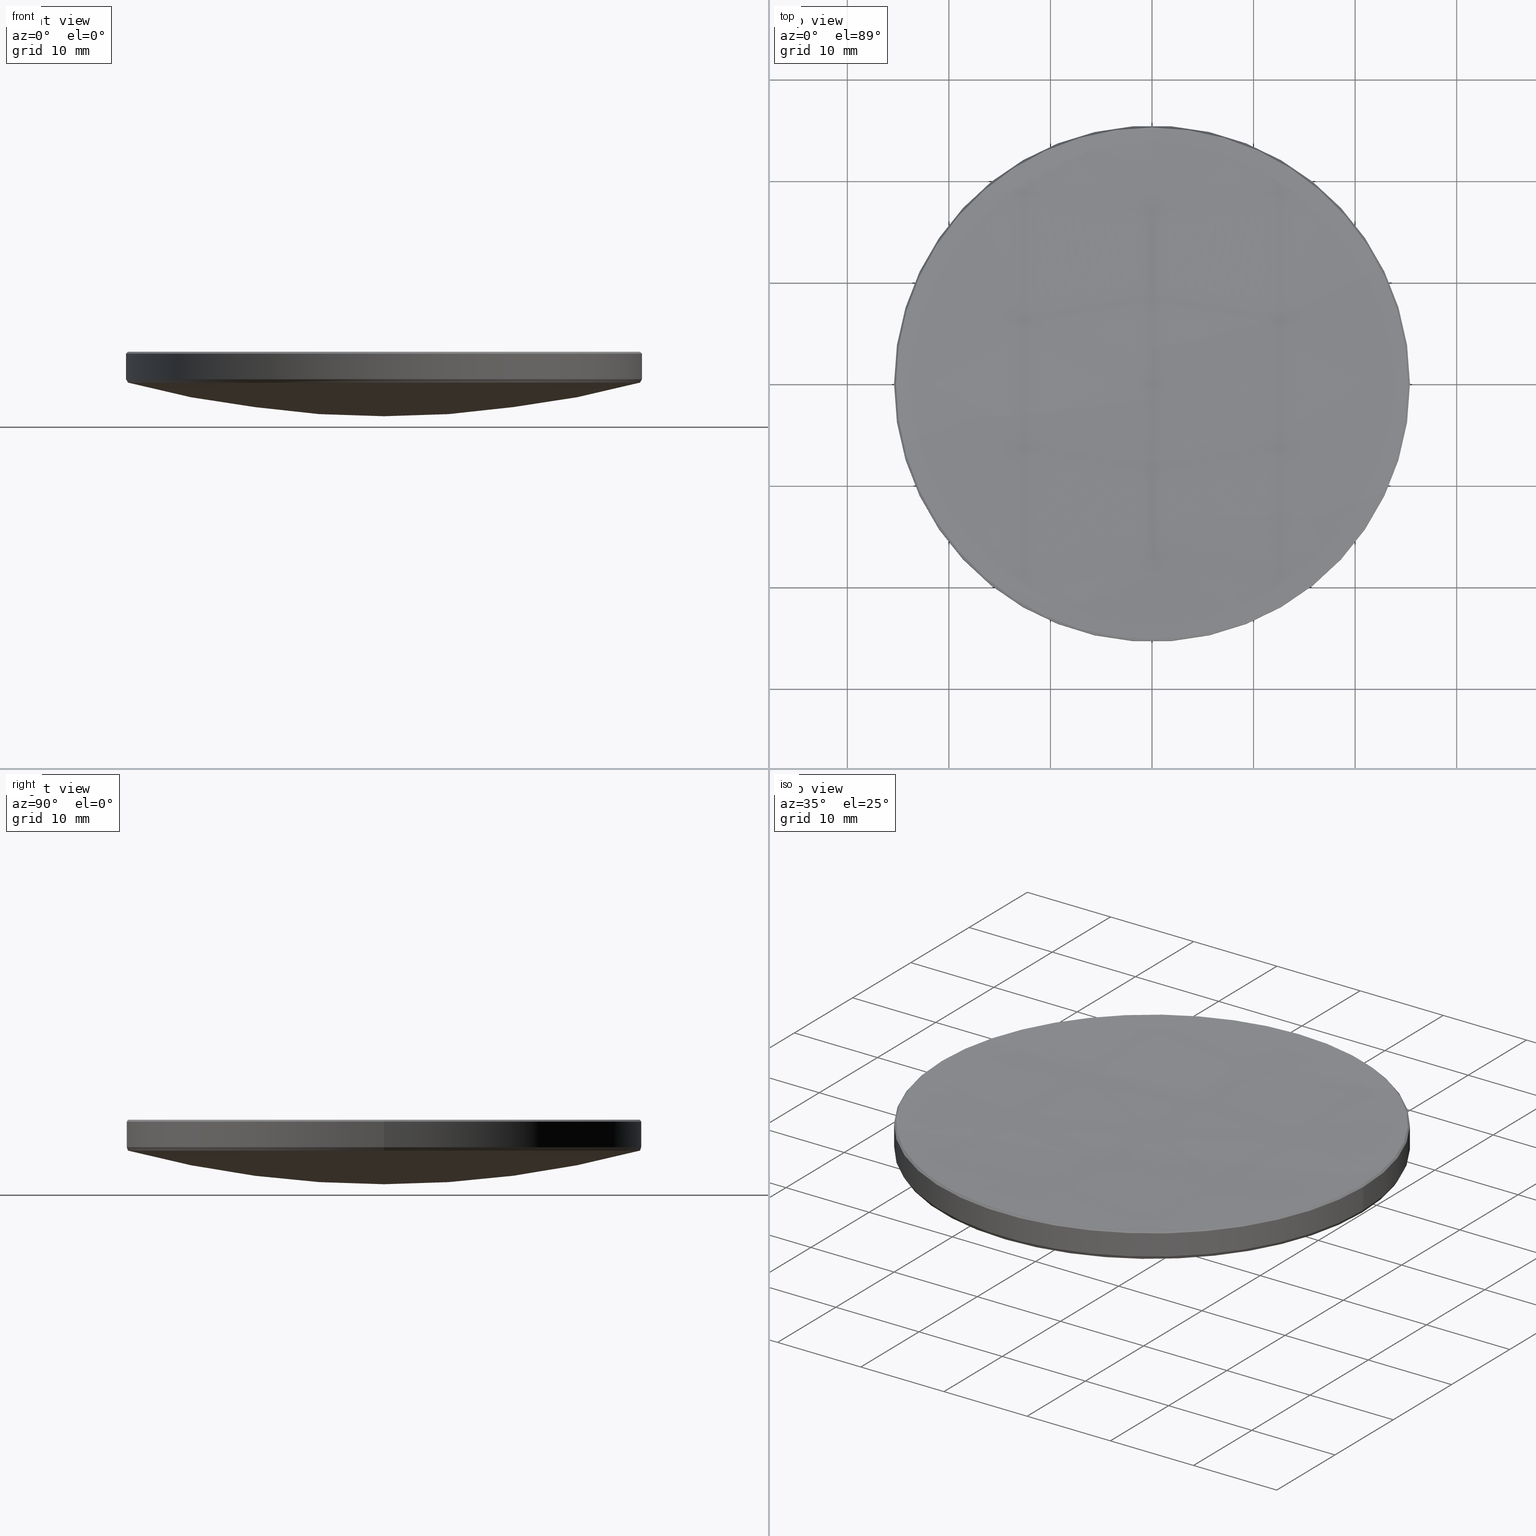
[diagram: canonical four-view strip — front | top / right | iso, engineering-drawing reading convention]
A machine part, canonical four-view strip (front | top / right | iso — engineering-drawing reading convention). The complete STEP part file that produces these views, byte-faithful:
ISO-10303-21;
HEADER;
FILE_DESCRIPTION (( 'STEP AP214' ),
    '1' );
FILE_NAME ('GLM2-050B-300-UV.STEP',
    '2024-08-09T02:56:08',
    ( 'Windows User' ),
    ( 'P R C' ),
    'SwSTEP 2.0',
    'SolidWorks 2022',
    '' );
FILE_SCHEMA (( 'AUTOMOTIVE_DESIGN' ));
ENDSEC;

DATA;
#1 = DIRECTION ( 'NONE',  ( -0.4987438503185733785, 6.107850598870675731E-17, 0.8667494284794218240 ) ) ;
#2 = EDGE_CURVE ( 'NONE', #261, #235, #9, .T. ) ;
#3 = PRESENTATION_LAYER_ASSIGNMENT (  '', '', ( #19 ) ) ;
#4 = DIRECTION ( 'NONE',  ( 1.000000000000000000, 0.000000000000000000, 0.000000000000000000 ) ) ;
#5 = CARTESIAN_POINT ( 'NONE',  ( -25.21438242854474154, 0.000000000000000000, 16.98561757145522577 ) ) ;
#6 = SPHERICAL_SURFACE ( 'NONE', #11, 327.5899999999999750 ) ;
#7 = AXIS2_PLACEMENT_3D ( 'NONE', #317, #25, #292 ) ;
#8 = CARTESIAN_POINT ( 'NONE',  ( 0.000000000000000000, 0.000000000000000000, 14.28355508774084548 ) ) ;
#9 = CIRCLE ( 'NONE', #214, 25.39999999999999858 ) ;
#10 = ORIENTED_EDGE ( 'NONE', *, *, #64, .T. ) ;
#11 = AXIS2_PLACEMENT_3D ( 'NONE', #226, #180, #76 ) ;
#12 = ORIENTED_EDGE ( 'NONE', *, *, #121, .T. ) ;
#13 = ORIENTED_EDGE ( 'NONE', *, *, #111, .T. ) ;
#14 = EDGE_CURVE ( 'NONE', #105, #297, #69, .T. ) ;
#15 = VERTEX_POINT ( 'NONE', #197 ) ;
#16 = AXIS2_PLACEMENT_3D ( 'NONE', #32, #135, #294 ) ;
#17 = ORIENTED_EDGE ( 'NONE', *, *, #47, .F. ) ;
#18 = CARTESIAN_POINT ( 'NONE',  ( 25.39999999999999858, 3.110602869834276865E-15, 14.28355508774084548 ) ) ;
#19 = STYLED_ITEM ( 'NONE', ( #208 ), #285 ) ;
#20 = CARTESIAN_POINT ( 'NONE',  ( 0.000000000000000000, 0.000000000000000000, 108.2472922687967838 ) ) ;
#21 = CARTESIAN_POINT ( 'NONE',  ( 0.000000000000000000, 0.000000000000000000, 16.98561757145522577 ) ) ;
#22 = EDGE_CURVE ( 'NONE', #209, #235, #65, .T. ) ;
#23 = FILL_AREA_STYLE_COLOUR ( '', #169 ) ;
#24 = CARTESIAN_POINT ( 'NONE',  ( 25.39999999999999858, 0.000000000000000000, 14.28355508774084548 ) ) ;
#25 = DIRECTION ( 'NONE',  ( -0.000000000000000000, -0.000000000000000000, -1.000000000000000000 ) ) ;
#26 = CARTESIAN_POINT ( 'NONE',  ( -25.20703431346279899, 3.098787129316124781E-15, 13.94820679539513009 ) ) ;
#27 = FACE_OUTER_BOUND ( 'NONE', #187, .T. ) ;
#28 = DIRECTION ( 'NONE',  ( -0.000000000000000000, -0.000000000000000000, 1.000000000000000000 ) ) ;
#29 = DIRECTION ( 'NONE',  ( 1.000000000000000000, 0.000000000000000000, 0.000000000000000000 ) ) ;
#30 = SURFACE_STYLE_USAGE ( .BOTH. , #150 ) ;
#31 = ORIENTED_EDGE ( 'NONE', *, *, #252, .T. ) ;
#32 = CARTESIAN_POINT ( 'NONE',  ( 0.000000000000000000, 0.000000000000000000, 0.000000000000000000 ) ) ;
#33 = ORIENTED_EDGE ( 'NONE', *, *, #279, .F. ) ;
#34 = CIRCLE ( 'NONE', #212, 25.39999999999999858 ) ;
#35 = ORIENTED_EDGE ( 'NONE', *, *, #148, .T. ) ;
#36 = EDGE_CURVE ( 'NONE', #146, #262, #221, .T. ) ;
#37 = ORIENTED_EDGE ( 'NONE', *, *, #121, .F. ) ;
#38 = DIRECTION ( 'NONE',  ( -1.000000000000000000, 0.000000000000000000, 0.000000000000000000 ) ) ;
#39 = VERTEX_POINT ( 'NONE', #122 ) ;
#40 = DIRECTION ( 'NONE',  ( 0.000000000000000000, 0.000000000000000000, -1.000000000000000000 ) ) ;
#41 = CARTESIAN_POINT ( 'NONE',  ( 0.000000000000000000, 0.000000000000000000, 108.2472922687967838 ) ) ;
#42 = MECHANICAL_DESIGN_GEOMETRIC_PRESENTATION_REPRESENTATION (  '', ( #19 ), #291 ) ;
#43 = FACE_OUTER_BOUND ( 'NONE', #83, .T. ) ;
#44 = LINE ( 'NONE', #245, #123 ) ;
#45 = DIRECTION ( 'NONE',  ( -0.000000000000000000, -0.000000000000000000, 1.000000000000000000 ) ) ;
#46 =( LENGTH_UNIT ( ) NAMED_UNIT ( * ) SI_UNIT ( .MILLI., .METRE. ) );
#47 = EDGE_CURVE ( 'NONE', #39, #140, #114, .T. ) ;
#48 = APPLICATION_PROTOCOL_DEFINITION ( 'draft international standard', 'automotive_design', 1998, #173 ) ;
#49 = AXIS2_PLACEMENT_3D ( 'NONE', #95, #144, #330 ) ;
#50 = AXIS2_PLACEMENT_3D ( 'NONE', #241, #75, #145 ) ;
#51 = EDGE_CURVE ( 'NONE', #140, #235, #253, .T. ) ;
#52 = DIRECTION ( 'NONE',  ( -0.000000000000000000, -0.000000000000000000, 1.000000000000000000 ) ) ;
#53 =( LENGTH_UNIT ( ) NAMED_UNIT ( * ) SI_UNIT ( .MILLI., .METRE. ) );
#54 = CARTESIAN_POINT ( 'NONE',  ( 0.000000000000000000, 0.000000000000000000, 16.98561757145522577 ) ) ;
#55 = ADVANCED_FACE ( 'NONE', ( #198 ), #94, .T. ) ;
#56 = ORIENTED_EDGE ( 'NONE', *, *, #71, .F. ) ;
#57 = ORIENTED_EDGE ( 'NONE', *, *, #22, .F. ) ;
#58 = VECTOR ( 'NONE', #332, 1000.000000000000227 ) ;
#59 = ORIENTED_EDGE ( 'NONE', *, *, #320, .F. ) ;
#60 = EDGE_LOOP ( 'NONE', ( #62, #326, #300, #319 ) ) ;
#61 = MANIFOLD_SOLID_BREP ( '����1', #151 ) ;
#62 = ORIENTED_EDGE ( 'NONE', *, *, #175, .T. ) ;
#63 = CIRCLE ( 'NONE', #90, 25.20703431346279544 ) ;
#64 = EDGE_CURVE ( 'NONE', #105, #230, #251, .T. ) ;
#65 = LINE ( 'NONE', #303, #243 ) ;
#66 = AXIS2_PLACEMENT_3D ( 'NONE', #307, #78, #73 ) ;
#67 = SURFACE_SIDE_STYLE ('',( #72 ) ) ;
#68 = CARTESIAN_POINT ( 'NONE',  ( 0.000000000000000000, 25.21438242854472023, 16.98561757145519735 ) ) ;
#69 = CIRCLE ( 'NONE', #107, 327.5899999999999750 ) ;
#70 =( NAMED_UNIT ( * ) PLANE_ANGLE_UNIT ( ) SI_UNIT ( $, .RADIAN. ) );
#71 = EDGE_CURVE ( 'NONE', #143, #15, #157, .T. ) ;
#72 = SURFACE_STYLE_FILL_AREA ( #170 ) ;
#73 = DIRECTION ( 'NONE',  ( 1.000000000000000000, 0.000000000000000000, 0.000000000000000000 ) ) ;
#74 = CIRCLE ( 'NONE', #282, 25.39999999999999858 ) ;
#75 = DIRECTION ( 'NONE',  ( 1.000000000000000000, 0.000000000000000000, 0.000000000000000000 ) ) ;
#76 = DIRECTION ( 'NONE',  ( 0.000000000000000000, 1.000000000000000000, 0.000000000000000000 ) ) ;
#77 = FACE_OUTER_BOUND ( 'NONE', #296, .T. ) ;
#78 = DIRECTION ( 'NONE',  ( -0.000000000000000000, -0.000000000000000000, 1.000000000000000000 ) ) ;
#79 = DIRECTION ( 'NONE',  ( -1.000000000000000000, 0.000000000000000000, 0.000000000000000000 ) ) ;
#80 = CARTESIAN_POINT ( 'NONE',  ( 0.000000000000000000, 0.000000000000000000, 16.79999999999998295 ) ) ;
#81 = STYLED_ITEM ( 'NONE', ( #284 ), #61 ) ;
#82 = SHAPE_DEFINITION_REPRESENTATION ( #126, #285 ) ;
#83 = EDGE_LOOP ( 'NONE', ( #57, #190, #31, #321 ) ) ;
#84 = VERTEX_POINT ( 'NONE', #219 ) ;
#85 = ORIENTED_EDGE ( 'NONE', *, *, #288, .F. ) ;
#86 = EDGE_LOOP ( 'NONE', ( #162, #96, #233, #35 ) ) ;
#87 = LINE ( 'NONE', #113, #250 ) ;
#88 = EDGE_LOOP ( 'NONE', ( #56, #323, #178, #298 ) ) ;
#89 = ADVANCED_FACE ( 'NONE', ( #329 ), #97, .T. ) ;
#90 = AXIS2_PLACEMENT_3D ( 'NONE', #93, #304, #277 ) ;
#91 = CIRCLE ( 'NONE', #283, 25.21438242854474154 ) ;
#92 = DIRECTION ( 'NONE',  ( -1.000000000000000000, 0.000000000000000000, 0.000000000000000000 ) ) ;
#93 = CARTESIAN_POINT ( 'NONE',  ( 0.000000000000000000, 0.000000000000000000, 13.94820679539513009 ) ) ;
#94 = SPHERICAL_SURFACE ( 'NONE', #110, 97.61000000000001364 ) ;
#95 = CARTESIAN_POINT ( 'NONE',  ( 0.000000000000000000, 0.000000000000000000, 108.2472922687967838 ) ) ;
#96 = ORIENTED_EDGE ( 'NONE', *, *, #14, .T. ) ;
#97 = CONICAL_SURFACE ( 'NONE', #234, 25.39999999999999858, 0.5221489052077682436 ) ;
#98 = ORIENTED_EDGE ( 'NONE', *, *, #175, .F. ) ;
#99 = DIRECTION ( 'NONE',  ( 1.000000000000000000, 0.000000000000000000, 0.000000000000000000 ) ) ;
#100 = DIRECTION ( 'NONE',  ( 0.000000000000000000, 0.000000000000000000, -1.000000000000000000 ) ) ;
#101 = DIRECTION ( 'NONE',  ( 0.000000000000000000, 0.000000000000000000, -1.000000000000000000 ) ) ;
#102 = CARTESIAN_POINT ( 'NONE',  ( 25.20703431346279899, 0.000000000000000000, 13.94820679539513009 ) ) ;
#103 =( NAMED_UNIT ( * ) PLANE_ANGLE_UNIT ( ) SI_UNIT ( $, .RADIAN. ) );
#104 = CIRCLE ( 'NONE', #207, 25.39999999999999858 ) ;
#105 = VERTEX_POINT ( 'NONE', #278 ) ;
#106 = ORIENTED_EDGE ( 'NONE', *, *, #36, .F. ) ;
#107 = AXIS2_PLACEMENT_3D ( 'NONE', #147, #115, #201 ) ;
#108 = ORIENTED_EDGE ( 'NONE', *, *, #127, .F. ) ;
#109 = ORIENTED_EDGE ( 'NONE', *, *, #279, .T. ) ;
#110 = AXIS2_PLACEMENT_3D ( 'NONE', #41, #271, #244 ) ;
#111 = EDGE_CURVE ( 'NONE', #168, #261, #44, .T. ) ;
#112 = ORIENTED_EDGE ( 'NONE', *, *, #236, .F. ) ;
#113 = CARTESIAN_POINT ( 'NONE',  ( -25.39999999999999858, 0.000000000000000000, 20.00000000000000000 ) ) ;
#114 = CIRCLE ( 'NONE', #309, 25.20703431346279544 ) ;
#115 = DIRECTION ( 'NONE',  ( -1.000000000000000000, 1.224646799147353207E-16, 0.000000000000000000 ) ) ;
#116 = AXIS2_PLACEMENT_3D ( 'NONE', #142, #324, #275 ) ;
#117 = DIRECTION ( 'NONE',  ( -1.000000000000000000, 1.224646799147353207E-16, 0.000000000000000000 ) ) ;
#118 = DIRECTION ( 'NONE',  ( 0.000000000000000000, 1.000000000000000000, 0.000000000000000000 ) ) ;
#119 = DIRECTION ( 'NONE',  ( -0.000000000000000000, -0.000000000000000000, 1.000000000000000000 ) ) ;
#120 = DIRECTION ( 'NONE',  ( -0.000000000000000000, -0.000000000000000000, -1.000000000000000000 ) ) ;
#121 = EDGE_CURVE ( 'NONE', #146, #297, #91, .T. ) ;
#122 = CARTESIAN_POINT ( 'NONE',  ( 0.000000000000000000, 25.20703431346280965, 13.94820679539513009 ) ) ;
#123 = VECTOR ( 'NONE', #1, 1000.000000000000227 ) ;
#124 = DIRECTION ( 'NONE',  ( 0.000000000000000000, 0.000000000000000000, -1.000000000000000000 ) ) ;
#125 =( NAMED_UNIT ( * ) SI_UNIT ( $, .STERADIAN. ) SOLID_ANGLE_UNIT ( ) );
#126 = PRODUCT_DEFINITION_SHAPE ( 'NONE', 'NONE',  #308 ) ;
#127 = EDGE_CURVE ( 'NONE', #297, #84, #247, .T. ) ;
#128 = DIRECTION ( 'NONE',  ( -0.000000000000000000, -0.000000000000000000, 1.000000000000000000 ) ) ;
#129 = DIRECTION ( 'NONE',  ( -0.000000000000000000, -0.000000000000000000, 1.000000000000000000 ) ) ;
#130 = DIRECTION ( 'NONE',  ( 1.000000000000000000, 0.000000000000000000, 0.000000000000000000 ) ) ;
#131 = SPHERICAL_SURFACE ( 'NONE', #134, 97.61000000000001364 ) ;
#132 = FACE_OUTER_BOUND ( 'NONE', #60, .T. ) ;
#133 = EDGE_LOOP ( 'NONE', ( #166, #267, #98, #106, #194 ) ) ;
#134 = AXIS2_PLACEMENT_3D ( 'NONE', #289, #79, #184 ) ;
#135 = DIRECTION ( 'NONE',  ( 0.000000000000000000, 0.000000000000000000, 1.000000000000000000 ) ) ;
#136 = CIRCLE ( 'NONE', #328, 25.21438242854474154 ) ;
#137 = ORIENTED_EDGE ( 'NONE', *, *, #14, .F. ) ;
#138 = UNCERTAINTY_MEASURE_WITH_UNIT (LENGTH_MEASURE( 1.000000000000000082E-05 ), #46, 'distance_accuracy_value', 'NONE');
#139 = AXIS2_PLACEMENT_3D ( 'NONE', #54, #286, #158 ) ;
#140 = VERTEX_POINT ( 'NONE', #102 ) ;
#141 = ORIENTED_EDGE ( 'NONE', *, *, #320, .T. ) ;
#142 = CARTESIAN_POINT ( 'NONE',  ( 0.000000000000000000, 0.000000000000000000, 20.00000000000000000 ) ) ;
#143 = VERTEX_POINT ( 'NONE', #155 ) ;
#144 = DIRECTION ( 'NONE',  ( 1.000000000000000000, -0.000000000000000000, 0.000000000000000000 ) ) ;
#145 = DIRECTION ( 'NONE',  ( 0.000000000000000000, 0.000000000000000000, -1.000000000000000000 ) ) ;
#146 = VERTEX_POINT ( 'NONE', #5 ) ;
#147 = CARTESIAN_POINT ( 'NONE',  ( 0.000000000000000000, 0.000000000000000000, 343.6038090714803843 ) ) ;
#148 = EDGE_CURVE ( 'NONE', #84, #230, #202, .T. ) ;
#149 = CARTESIAN_POINT ( 'NONE',  ( 0.000000000000000000, 0.000000000000000000, 16.98561757145522577 ) ) ;
#150 = SURFACE_SIDE_STYLE ('',( #259 ) ) ;
#151 = CLOSED_SHELL ( 'NONE', ( #222, #89, #186, #55, #299, #189, #181, #269, #331, #152 ) ) ;
#152 = ADVANCED_FACE ( 'NONE', ( #77 ), #263, .T. ) ;
#153 =( NAMED_UNIT ( * ) PLANE_ANGLE_UNIT ( ) SI_UNIT ( $, .RADIAN. ) );
#154 = DIRECTION ( 'NONE',  ( 0.000000000000000000, 0.000000000000000000, -1.000000000000000000 ) ) ;
#155 = CARTESIAN_POINT ( 'NONE',  ( 0.000000000000000000, 5.976888703238658404E-15, 10.63729226879676837 ) ) ;
#156 = CARTESIAN_POINT ( 'NONE',  ( 0.000000000000000000, 0.000000000000000000, 13.94820679539513009 ) ) ;
#157 = CIRCLE ( 'NONE', #240, 97.61000000000001364 ) ;
#158 = DIRECTION ( 'NONE',  ( 1.000000000000000000, 0.000000000000000000, 0.000000000000000000 ) ) ;
#159 = FILL_AREA_STYLE_COLOUR ( '', #160 ) ;
#160 = COLOUR_RGB ( '',1.000000000000000000, 1.000000000000000000, 1.000000000000000000 ) ;
#161 = EDGE_CURVE ( 'NONE', #235, #261, #74, .T. ) ;
#162 = ORIENTED_EDGE ( 'NONE', *, *, #64, .F. ) ;
#163 = EDGE_LOOP ( 'NONE', ( #188, #322, #141, #109 ) ) ;
#164 = ORIENTED_EDGE ( 'NONE', *, *, #51, .F. ) ;
#165 = EDGE_CURVE ( 'NONE', #84, #209, #225, .T. ) ;
#166 = ORIENTED_EDGE ( 'NONE', *, *, #148, .F. ) ;
#167 = AXIS2_PLACEMENT_3D ( 'NONE', #21, #40, #220 ) ;
#168 = VERTEX_POINT ( 'NONE', #26 ) ;
#169 = COLOUR_RGB ( '',1.000000000000000000, 1.000000000000000000, 1.000000000000000000 ) ;
#170 = FILL_AREA_STYLE ('',( #23 ) ) ;
#171 = PRODUCT_RELATED_PRODUCT_CATEGORY ( 'part', '', ( #227 ) ) ;
#172 = CARTESIAN_POINT ( 'NONE',  ( 0.000000000000000000, 0.000000000000000000, 14.28355508774084548 ) ) ;
#173 = APPLICATION_CONTEXT ( 'automotive_design' ) ;
#174 = PRODUCT_DEFINITION_CONTEXT ( 'detailed design', #191, 'design' ) ;
#175 = EDGE_CURVE ( 'NONE', #262, #209, #104, .T. ) ;
#176 = CARTESIAN_POINT ( 'NONE',  ( 0.000000000000000000, 0.000000000000000000, 14.28355508774084548 ) ) ;
#177 = AXIS2_PLACEMENT_3D ( 'NONE', #203, #52, #29 ) ;
#178 = ORIENTED_EDGE ( 'NONE', *, *, #47, .T. ) ;
#179 = CARTESIAN_POINT ( 'NONE',  ( 0.000000000000000000, 0.000000000000000000, 16.98561757145522577 ) ) ;
#180 = DIRECTION ( 'NONE',  ( -1.000000000000000000, 0.000000000000000000, 0.000000000000000000 ) ) ;
#181 = ADVANCED_FACE ( 'NONE', ( #258 ), #131, .T. ) ;
#182 = DIRECTION ( 'NONE',  ( 1.000000000000000000, 0.000000000000000000, 0.000000000000000000 ) ) ;
#183 = CARTESIAN_POINT ( 'NONE',  ( -25.39999999999999858, 0.000000000000000000, 14.28355508774084548 ) ) ;
#184 = DIRECTION ( 'NONE',  ( 0.000000000000000000, 1.000000000000000000, 0.000000000000000000 ) ) ;
#185 = CYLINDRICAL_SURFACE ( 'NONE', #7, 25.39999999999999858 ) ;
#186 = ADVANCED_FACE ( 'NONE', ( #316 ), #265, .F. ) ;
#187 = EDGE_LOOP ( 'NONE', ( #137, #10, #215, #12 ) ) ;
#188 = ORIENTED_EDGE ( 'NONE', *, *, #223, .F. ) ;
#189 = ADVANCED_FACE ( 'NONE', ( #43 ), #268, .T. ) ;
#190 = ORIENTED_EDGE ( 'NONE', *, *, #288, .T. ) ;
#191 = APPLICATION_CONTEXT ( 'automotive_design' ) ;
#192 = ORIENTED_EDGE ( 'NONE', *, *, #51, .T. ) ;
#193 = VECTOR ( 'NONE', #327, 1000.000000000000000 ) ;
#194 = ORIENTED_EDGE ( 'NONE', *, *, #281, .F. ) ;
#195 = VECTOR ( 'NONE', #254, 1000.000000000000000 ) ;
#196 = CIRCLE ( 'NONE', #231, 25.20703431346279544 ) ;
#197 = CARTESIAN_POINT ( 'NONE',  ( -3.086971388797973485E-15, -25.20703431346280965, 13.94820679539513009 ) ) ;
#198 = FACE_OUTER_BOUND ( 'NONE', #163, .T. ) ;
#199 = DIRECTION ( 'NONE',  ( 0.000000000000000000, 0.000000000000000000, -1.000000000000000000 ) ) ;
#200 = MECHANICAL_DESIGN_GEOMETRIC_PRESENTATION_REPRESENTATION (  '', ( #81 ), #210 ) ;
#201 = DIRECTION ( 'NONE',  ( -1.224646799147353207E-16, -1.000000000000000000, 0.000000000000000000 ) ) ;
#202 = CIRCLE ( 'NONE', #177, 25.21438242854474154 ) ;
#203 = CARTESIAN_POINT ( 'NONE',  ( 0.000000000000000000, 0.000000000000000000, 16.98561757145522577 ) ) ;
#204 = DIRECTION ( 'NONE',  ( 0.000000000000000000, 0.000000000000000000, -1.000000000000000000 ) ) ;
#205 = DIRECTION ( 'NONE',  ( -1.000000000000000000, 0.000000000000000000, 0.000000000000000000 ) ) ;
#206 = FILL_AREA_STYLE ('',( #159 ) ) ;
#207 = AXIS2_PLACEMENT_3D ( 'NONE', #228, #100, #314 ) ;
#208 = PRESENTATION_STYLE_ASSIGNMENT (( #30 ) ) ;
#209 = VERTEX_POINT ( 'NONE', #242 ) ;
#210 =( GEOMETRIC_REPRESENTATION_CONTEXT ( 3 ) GLOBAL_UNCERTAINTY_ASSIGNED_CONTEXT ( ( #266 ) ) GLOBAL_UNIT_ASSIGNED_CONTEXT ( ( #248, #70, #305 ) ) REPRESENTATION_CONTEXT ( 'NONE', 'WORKASPACE' ) );
#211 = APPLICATION_PROTOCOL_DEFINITION ( 'draft international standard', 'automotive_design', 1998, #191 ) ;
#212 = AXIS2_PLACEMENT_3D ( 'NONE', #80, #204, #99 ) ;
#213 = ORIENTED_EDGE ( 'NONE', *, *, #161, .F. ) ;
#214 = AXIS2_PLACEMENT_3D ( 'NONE', #176, #119, #92 ) ;
#215 = ORIENTED_EDGE ( 'NONE', *, *, #281, .T. ) ;
#216 = EDGE_LOOP ( 'NONE', ( #237, #59, #112, #192, #264 ) ) ;
#217 = ORIENTED_EDGE ( 'NONE', *, *, #36, .T. ) ;
#218 = DIRECTION ( 'NONE',  ( -0.000000000000000000, -0.000000000000000000, -1.000000000000000000 ) ) ;
#219 = CARTESIAN_POINT ( 'NONE',  ( 25.21438242854474154, 3.099237071596867842E-15, 16.98561757145522577 ) ) ;
#220 = DIRECTION ( 'NONE',  ( -1.000000000000000000, 0.000000000000000000, 0.000000000000000000 ) ) ;
#221 = LINE ( 'NONE', #301, #193 ) ;
#222 = ADVANCED_FACE ( 'NONE', ( #246 ), #270, .T. ) ;
#223 = EDGE_CURVE ( 'NONE', #143, #39, #310, .T. ) ;
#224 = DIRECTION ( 'NONE',  ( 1.000000000000000000, 0.000000000000000000, 0.000000000000000000 ) ) ;
#225 = LINE ( 'NONE', #229, #195 ) ;
#226 = CARTESIAN_POINT ( 'NONE',  ( 0.000000000000000000, 0.000000000000000000, 343.6038090714803843 ) ) ;
#227 = PRODUCT ( 'GLM2-050B-300-UV', 'GLM2-050B-300-UV', '', ( #232 ) ) ;
#228 = CARTESIAN_POINT ( 'NONE',  ( 0.000000000000000000, 0.000000000000000000, 16.79999999999998295 ) ) ;
#229 = CARTESIAN_POINT ( 'NONE',  ( 25.21438242854473799, 3.087871273359458030E-15, 16.98561757145522577 ) ) ;
#230 = VERTEX_POINT ( 'NONE', #68 ) ;
#231 = AXIS2_PLACEMENT_3D ( 'NONE', #290, #101, #4 ) ;
#232 = PRODUCT_CONTEXT ( 'NONE', #173, 'mechanical' ) ;
#233 = ORIENTED_EDGE ( 'NONE', *, *, #127, .T. ) ;
#234 = AXIS2_PLACEMENT_3D ( 'NONE', #172, #45, #276 ) ;
#235 = VERTEX_POINT ( 'NONE', #18 ) ;
#236 = EDGE_CURVE ( 'NONE', #140, #15, #63, .T. ) ;
#237 = ORIENTED_EDGE ( 'NONE', *, *, #111, .F. ) ;
#238 = EDGE_LOOP ( 'NONE', ( #33, #13, #213, #164, #17 ) ) ;
#239 = CARTESIAN_POINT ( 'NONE',  ( 0.000000000000000000, 0.000000000000000000, 343.6038090714803843 ) ) ;
#240 = AXIS2_PLACEMENT_3D ( 'NONE', #20, #117, #274 ) ;
#241 = CARTESIAN_POINT ( 'NONE',  ( 0.000000000000000000, 0.000000000000000000, 343.6038090714803843 ) ) ;
#242 = CARTESIAN_POINT ( 'NONE',  ( 25.39999999999999858, 3.110602869834276865E-15, 16.79999999999998295 ) ) ;
#243 = VECTOR ( 'NONE', #218, 1000.000000000000000 ) ;
#244 = DIRECTION ( 'NONE',  ( 0.000000000000000000, 1.000000000000000000, 0.000000000000000000 ) ) ;
#245 = CARTESIAN_POINT ( 'NONE',  ( -25.39999999999999858, 3.110602869834276865E-15, 14.28355508774084548 ) ) ;
#246 = FACE_OUTER_BOUND ( 'NONE', #133, .T. ) ;
#247 = CIRCLE ( 'NONE', #139, 25.21438242854474154 ) ;
#248 =( LENGTH_UNIT ( ) NAMED_UNIT ( * ) SI_UNIT ( .MILLI., .METRE. ) );
#249 = CARTESIAN_POINT ( 'NONE',  ( -25.39999999999999858, 0.000000000000000000, 16.79999999999998295 ) ) ;
#250 = VECTOR ( 'NONE', #120, 1000.000000000000000 ) ;
#251 = CIRCLE ( 'NONE', #50, 327.5899999999999750 ) ;
#252 = EDGE_CURVE ( 'NONE', #262, #261, #87, .T. ) ;
#253 = LINE ( 'NONE', #24, #58 ) ;
#254 = DIRECTION ( 'NONE',  ( 0.7071067811865805464, 8.659560562355338382E-17, -0.7071067811865144881 ) ) ;
#255 = CARTESIAN_POINT ( 'NONE',  ( 0.000000000000000000, 0.000000000000000000, 16.98561757145522577 ) ) ;
#256 = DIRECTION ( 'NONE',  ( -1.000000000000000000, 0.000000000000000000, 0.000000000000000000 ) ) ;
#257 =( NAMED_UNIT ( * ) SI_UNIT ( $, .STERADIAN. ) SOLID_ANGLE_UNIT ( ) );
#258 = FACE_OUTER_BOUND ( 'NONE', #88, .T. ) ;
#259 = SURFACE_STYLE_FILL_AREA ( #206 ) ;
#260 = AXIS2_PLACEMENT_3D ( 'NONE', #239, #38, #118 ) ;
#261 = VERTEX_POINT ( 'NONE', #183 ) ;
#262 = VERTEX_POINT ( 'NONE', #249 ) ;
#263 = CONICAL_SURFACE ( 'NONE', #311, 25.21438242854473799, 0.7853981633974950194 ) ;
#264 = ORIENTED_EDGE ( 'NONE', *, *, #2, .F. ) ;
#265 = SPHERICAL_SURFACE ( 'NONE', #260, 327.5899999999999750 ) ;
#266 = UNCERTAINTY_MEASURE_WITH_UNIT (LENGTH_MEASURE( 1.000000000000000082E-05 ), #248, 'distance_accuracy_value', 'NONE');
#267 = ORIENTED_EDGE ( 'NONE', *, *, #165, .T. ) ;
#268 = CYLINDRICAL_SURFACE ( 'NONE', #116, 25.39999999999999858 ) ;
#269 = ADVANCED_FACE ( 'NONE', ( #27 ), #6, .F. ) ;
#270 = CONICAL_SURFACE ( 'NONE', #167, 25.21438242854473799, 0.7853981633974950194 ) ;
#271 = DIRECTION ( 'NONE',  ( -1.000000000000000000, 0.000000000000000000, 0.000000000000000000 ) ) ;
#272 = PRESENTATION_LAYER_ASSIGNMENT (  '', '', ( #81 ) ) ;
#273 =( GEOMETRIC_REPRESENTATION_CONTEXT ( 3 ) GLOBAL_UNCERTAINTY_ASSIGNED_CONTEXT ( ( #302 ) ) GLOBAL_UNIT_ASSIGNED_CONTEXT ( ( #53, #103, #257 ) ) REPRESENTATION_CONTEXT ( 'NONE', 'WORKASPACE' ) );
#274 = DIRECTION ( 'NONE',  ( -1.224646799147353207E-16, -1.000000000000000000, 0.000000000000000000 ) ) ;
#275 = DIRECTION ( 'NONE',  ( -1.000000000000000000, 0.000000000000000000, 0.000000000000000000 ) ) ;
#276 = DIRECTION ( 'NONE',  ( 1.000000000000000000, 0.000000000000000000, 0.000000000000000000 ) ) ;
#277 = DIRECTION ( 'NONE',  ( 1.000000000000000000, 0.000000000000000000, 0.000000000000000000 ) ) ;
#278 = CARTESIAN_POINT ( 'NONE',  ( 0.000000000000000000, 2.005910224663407022E-14, 16.01380907148036670 ) ) ;
#279 = EDGE_CURVE ( 'NONE', #168, #39, #196, .T. ) ;
#280 = CIRCLE ( 'NONE', #293, 25.20703431346279544 ) ;
#281 = EDGE_CURVE ( 'NONE', #230, #146, #136, .T. ) ;
#282 = AXIS2_PLACEMENT_3D ( 'NONE', #8, #28, #256 ) ;
#283 = AXIS2_PLACEMENT_3D ( 'NONE', #149, #128, #182 ) ;
#284 = PRESENTATION_STYLE_ASSIGNMENT (( #312 ) ) ;
#285 = ADVANCED_BREP_SHAPE_REPRESENTATION ( 'GLM2-050B-300-UV', ( #61, #16 ), #273 ) ;
#286 = DIRECTION ( 'NONE',  ( -0.000000000000000000, -0.000000000000000000, 1.000000000000000000 ) ) ;
#287 = DIRECTION ( 'NONE',  ( 1.000000000000000000, 0.000000000000000000, 0.000000000000000000 ) ) ;
#288 = EDGE_CURVE ( 'NONE', #209, #262, #34, .T. ) ;
#289 = CARTESIAN_POINT ( 'NONE',  ( 0.000000000000000000, 0.000000000000000000, 108.2472922687967838 ) ) ;
#290 = CARTESIAN_POINT ( 'NONE',  ( 0.000000000000000000, 0.000000000000000000, 13.94820679539513009 ) ) ;
#291 =( GEOMETRIC_REPRESENTATION_CONTEXT ( 3 ) GLOBAL_UNCERTAINTY_ASSIGNED_CONTEXT ( ( #138 ) ) GLOBAL_UNIT_ASSIGNED_CONTEXT ( ( #46, #153, #125 ) ) REPRESENTATION_CONTEXT ( 'NONE', 'WORKASPACE' ) );
#292 = DIRECTION ( 'NONE',  ( -1.000000000000000000, 0.000000000000000000, 0.000000000000000000 ) ) ;
#293 = AXIS2_PLACEMENT_3D ( 'NONE', #156, #199, #287 ) ;
#294 = DIRECTION ( 'NONE',  ( 1.000000000000000000, 0.000000000000000000, 0.000000000000000000 ) ) ;
#295 = ORIENTED_EDGE ( 'NONE', *, *, #165, .F. ) ;
#296 = EDGE_LOOP ( 'NONE', ( #295, #108, #37, #217, #85 ) ) ;
#297 = VERTEX_POINT ( 'NONE', #315 ) ;
#298 = ORIENTED_EDGE ( 'NONE', *, *, #236, .T. ) ;
#299 = ADVANCED_FACE ( 'NONE', ( #132 ), #185, .T. ) ;
#300 = ORIENTED_EDGE ( 'NONE', *, *, #161, .T. ) ;
#301 = CARTESIAN_POINT ( 'NONE',  ( -25.21438242854473799, 0.000000000000000000, 16.98561757145522577 ) ) ;
#302 = UNCERTAINTY_MEASURE_WITH_UNIT (LENGTH_MEASURE( 1.000000000000000082E-05 ), #53, 'distance_accuracy_value', 'NONE');
#303 = CARTESIAN_POINT ( 'NONE',  ( 25.39999999999999858, 3.110602869834276865E-15, 20.00000000000000000 ) ) ;
#304 = DIRECTION ( 'NONE',  ( 0.000000000000000000, 0.000000000000000000, -1.000000000000000000 ) ) ;
#305 =( NAMED_UNIT ( * ) SI_UNIT ( $, .STERADIAN. ) SOLID_ANGLE_UNIT ( ) );
#306 = CARTESIAN_POINT ( 'NONE',  ( 0.000000000000000000, 0.000000000000000000, 13.94820679539513009 ) ) ;
#307 = CARTESIAN_POINT ( 'NONE',  ( 0.000000000000000000, 0.000000000000000000, 14.28355508774084548 ) ) ;
#308 = PRODUCT_DEFINITION ( 'δ֪', '', #318, #174 ) ;
#309 = AXIS2_PLACEMENT_3D ( 'NONE', #306, #124, #224 ) ;
#310 = CIRCLE ( 'NONE', #49, 97.61000000000001364 ) ;
#311 = AXIS2_PLACEMENT_3D ( 'NONE', #179, #154, #205 ) ;
#312 = SURFACE_STYLE_USAGE ( .BOTH. , #67 ) ;
#313 = FACE_OUTER_BOUND ( 'NONE', #216, .T. ) ;
#314 = DIRECTION ( 'NONE',  ( 1.000000000000000000, 0.000000000000000000, 0.000000000000000000 ) ) ;
#315 = CARTESIAN_POINT ( 'NONE',  ( -3.087871273359455663E-15, -25.21438242854472023, 16.98561757145519735 ) ) ;
#316 = FACE_OUTER_BOUND ( 'NONE', #86, .T. ) ;
#317 = CARTESIAN_POINT ( 'NONE',  ( 0.000000000000000000, 0.000000000000000000, 20.00000000000000000 ) ) ;
#318 = PRODUCT_DEFINITION_FORMATION_WITH_SPECIFIED_SOURCE ( '�κ�', '', #227, .NOT_KNOWN. ) ;
#319 = ORIENTED_EDGE ( 'NONE', *, *, #252, .F. ) ;
#320 = EDGE_CURVE ( 'NONE', #15, #168, #280, .T. ) ;
#321 = ORIENTED_EDGE ( 'NONE', *, *, #2, .T. ) ;
#322 = ORIENTED_EDGE ( 'NONE', *, *, #71, .T. ) ;
#323 = ORIENTED_EDGE ( 'NONE', *, *, #223, .T. ) ;
#324 = DIRECTION ( 'NONE',  ( -0.000000000000000000, -0.000000000000000000, -1.000000000000000000 ) ) ;
#325 = CONICAL_SURFACE ( 'NONE', #66, 25.39999999999999858, 0.5221489052077682436 ) ;
#326 = ORIENTED_EDGE ( 'NONE', *, *, #22, .T. ) ;
#327 = DIRECTION ( 'NONE',  ( -0.7071067811865805464, 0.000000000000000000, -0.7071067811865144881 ) ) ;
#328 = AXIS2_PLACEMENT_3D ( 'NONE', #255, #129, #130 ) ;
#329 = FACE_OUTER_BOUND ( 'NONE', #238, .T. ) ;
#330 = DIRECTION ( 'NONE',  ( 0.000000000000000000, 0.000000000000000000, -1.000000000000000000 ) ) ;
#331 = ADVANCED_FACE ( 'NONE', ( #313 ), #325, .T. ) ;
#332 = DIRECTION ( 'NONE',  ( 0.4987438503185733785, 0.000000000000000000, 0.8667494284794218240 ) ) ;
ENDSEC;
END-ISO-10303-21;
